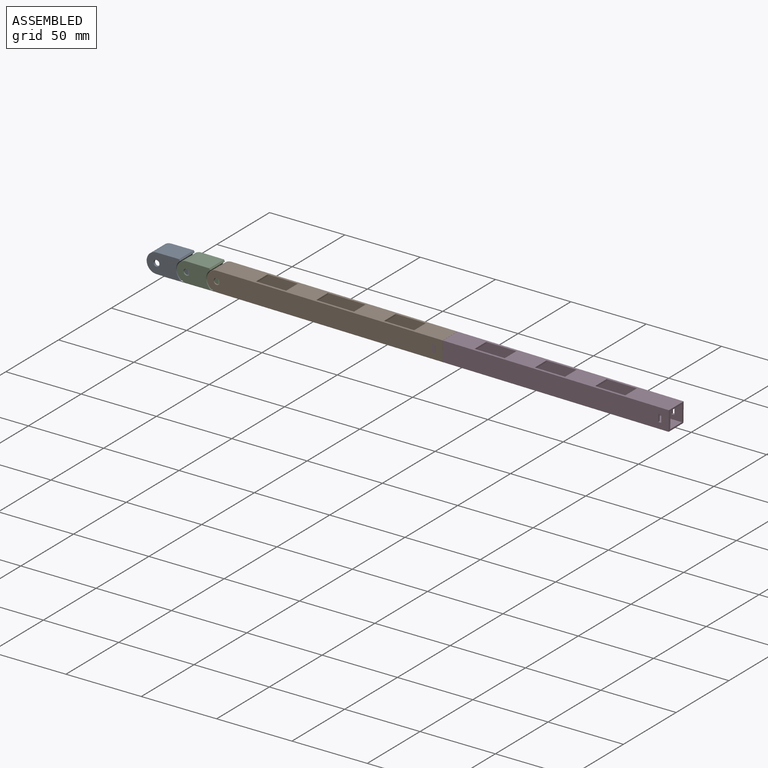
[diagram: assembled view]
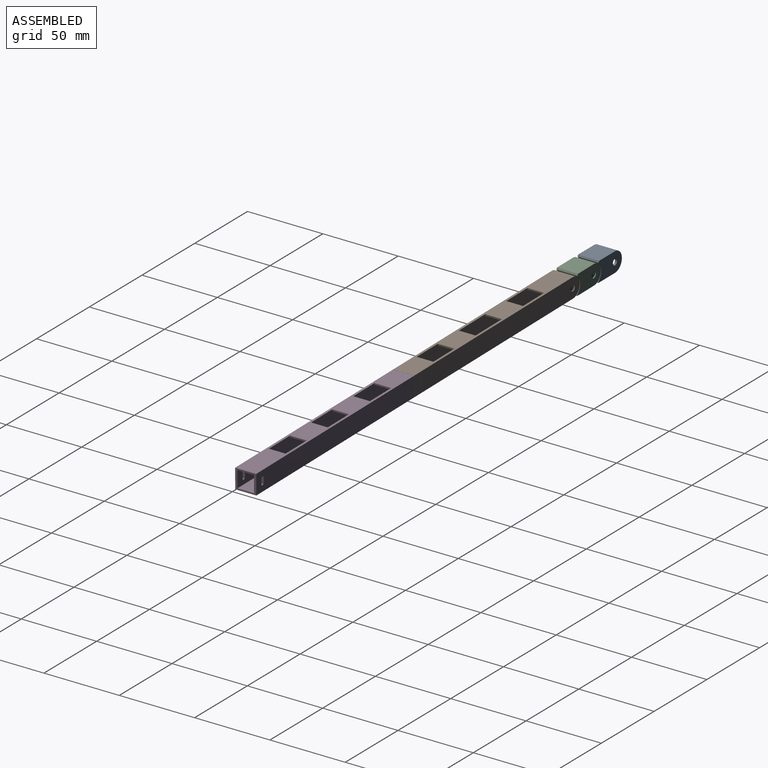
[diagram: assembled view, second angle]
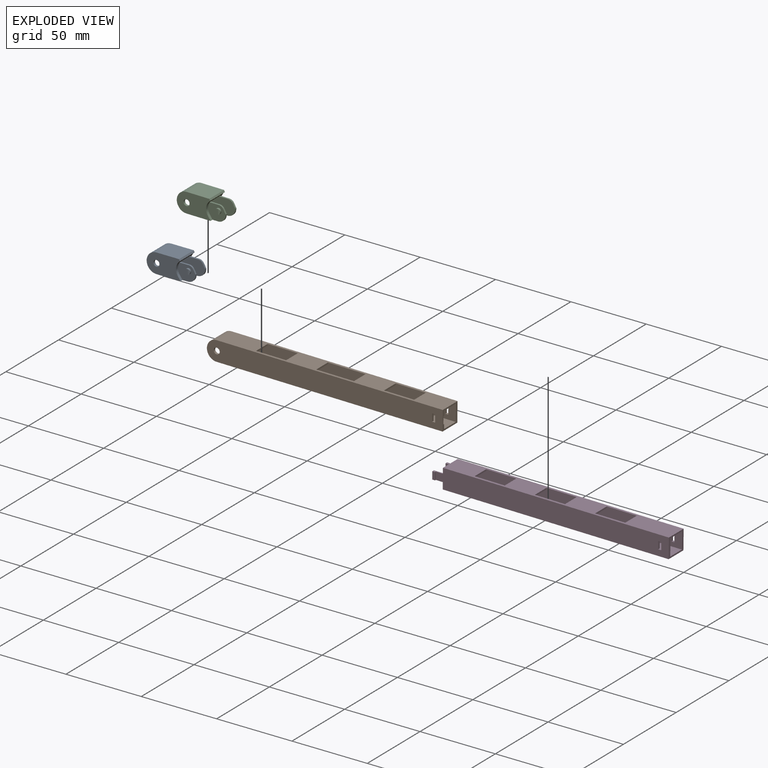
[diagram: exploded view]
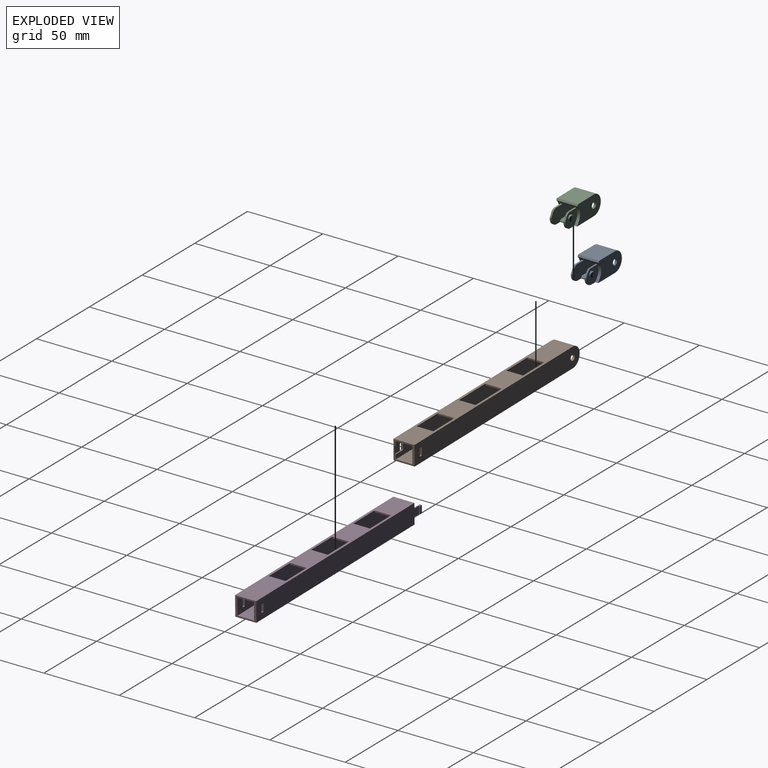
[diagram: exploded view, second angle]
ASSEMBLY  parts=4 mates=5
PART A: 40 faces, bbox 31.1x14x13 mm
  f0: plane 3.5x2.3mm, normal (0,-1,0), area 6.7mm2, adj f21,f25
  f1: cylinder r=7mm len=14mm, axis (0,1,0), area 64.4mm2, adj f2,f6,f8,f11,f18,f19,f20,f27
  f2: plane 14x1.05mm, normal (0.87,0,0.5), area 17mm2, adj f1,f3,f8,f29
  f3: plane 15x14mm, normal (0,0,1), area 210mm2, adj f2,f4,f8,f29
  f4: cylinder r=6.5mm len=14mm, axis (0,1,0), area 108.5mm2, adj f3,f5,f8,f9,f10,f29,f30
  f5: plane 19.6x14mm, normal (0,0,-1), area 188.3mm2, adj f4,f6,f8,f9,f13,f14,f19,f20
  f6: plane 2.49x1.9mm, normal (0.82,0,0.57), area 5.8mm2, adj f1,f5,f8,f20
  f7: cylinder r=2mm len=4mm, axis (0,1,0), area 18.8mm2, adj f8,f9
  f8: plane 22.5x13mm, normal (0,-1,0), area 236.5mm2, adj f1,f2,f3,f4,f5,f6,f7
  f9: plane 13.4x11.63mm, normal (0,1,0), area 105.7mm2, adj f4,f5,f7,f10,f11,f12,f13
  f10: cylinder r=0.8mm len=11mm, axis (0,-1,0), area 21.8mm2, adj f4,f9,f11,f30
  f11: plane 17.56x11mm, normal (0,0,-1), area 168.4mm2, adj f1,f9,f10,f12,f19,f30,f36
  f12: cylinder r=6.9mm len=11mm, axis (0,-1,0), area 38.7mm2, adj f9,f11,f13,f19,f22,f30,f36
  f13: cylinder r=0.5mm len=11mm, axis (0,-1,0), area 13.8mm2, adj f5,f9,f12,f30
  f14: cylinder r=5mm len=5mm, axis (0,-1,0), area 8.6mm2, adj f5,f15,f19,f20
  f15: plane 1.1x0.5mm, normal (1,0,0), area 0.6mm2, adj f14,f16,f19,f20
  f16: plane 2.73x1.56mm, normal (0.87,0,0.5), area 3.5mm2, adj f15,f17,f19,f20
  f17: cylinder r=3.5mm len=3.04mm, axis (0,-1,0), area 4.1mm2, adj f16,f18,f19,f20
  f18: plane 6.06x1.1mm, normal (0,0,1), area 6.7mm2, adj f1,f17,f19,f20
  f19: plane 19.85x10.2mm, normal (0,1,0), area 157.3mm2, adj f1,f5,f11,f12,f14,f15,f16,f17
  f20: plane 11.6x10mm, normal (0,-1,0), area 86.6mm2, adj f1,f5,f6,f14,f15,f16,f17,f18
  f21: cylinder r=1.75mm len=3.5mm, axis (0,1,0), area 14mm2, adj f0,f20,f25
  f22: plane 10.75x8mm, normal (0,0,1), area 86mm2, adj f12,f19,f23,f36
  f23: plane 8x1mm, normal (0.71,0,0.71), area 11.3mm2, adj f19,f22,f24,f36
  f24: plane 8x0.5mm, normal (1,0,0), area 4mm2, adj f5,f19,f23,f36
  f25: plane 3.32x1.2mm, normal (0.38,-0.92,0), area 3.2mm2, adj f0,f21
  f26: plane 3.5x2.3mm, normal (0,1,0), area 6.7mm2, adj f38,f39
  f27: plane 2.49x1.9mm, normal (0.82,0,0.57), area 5.8mm2, adj f1,f5,f29,f37
  f28: cylinder r=2mm len=4mm, axis (0,-1,0), area 18.8mm2, adj f29,f30
  f29: plane 22.5x13mm, normal (0,1,0), area 236.5mm2, adj f1,f2,f3,f4,f5,f27,f28
  f30: plane 13.4x11.63mm, normal (0,-1,0), area 105.7mm2, adj f4,f5,f10,f11,f12,f13,f28
  f31: cylinder r=5mm len=5mm, axis (0,1,0), area 8.6mm2, adj f5,f32,f36,f37
  f32: plane 1.1x0.5mm, normal (1,0,0), area 0.6mm2, adj f31,f33,f36,f37
  f33: plane 2.73x1.56mm, normal (0.87,0,0.5), area 3.5mm2, adj f32,f34,f36,f37
  f34: cylinder r=3.5mm len=3.04mm, axis (0,1,0), area 4.1mm2, adj f33,f35,f36,f37
  f35: plane 6.06x1.1mm, normal (0,0,1), area 6.7mm2, adj f1,f34,f36,f37
  f36: plane 19.85x10.2mm, normal (0,-1,0), area 157.3mm2, adj f1,f5,f11,f12,f22,f23,f24,f31
  f37: plane 11.6x10mm, normal (0,1,0), area 86.6mm2, adj f1,f5,f27,f31,f32,f33,f34,f35
  f38: cylinder r=1.75mm len=3.5mm, axis (0,-1,0), area 14mm2, adj f26,f37,f39
  f39: plane 3.32x1.2mm, normal (0.38,0.92,0), area 3.2mm2, adj f26,f38
PART B: 43 faces, bbox 156.5x14x13 mm
  f0: plane 5x0.75mm, normal (-1,0,0), area 3.7mm2, adj f3,f39,f40,f42
  f1: plane 156.5x13mm, normal (0,1,0), area 1781.7mm2, adj f2,f6,f7,f8,f9,f10,f11,f12
  f2: plane 14x13mm, normal (1,0,0), area 57.3mm2, adj f1,f3,f4,f5,f7,f8,f21,f29
  f3: plane 156.5x13mm, normal (0,-1,0), area 1993.8mm2, adj f0,f2,f6,f7,f8,f9,f39,f40
  f4: plane 156.5x13mm, normal (0,-1,0), area 1806.7mm2, adj f2,f6,f7,f8,f10,f11,f12,f13
  f5: plane 156.5x13mm, normal (0,1,0), area 1993.8mm2, adj f2,f6,f7,f8,f34,f35,f36,f37
  f6: cylinder r=6.5mm len=14mm, axis (0,1,0), area 108.5mm2, adj f1,f3,f4,f5,f7,f8,f10
  f7: plane 150x14mm, normal (0,0,-1), area 1337.4mm2, adj f1,f2,f3,f4,f5,f6,f23,f25
  f8: plane 150x14mm, normal (0,0,1), area 1385mm2, adj f1,f2,f3,f4,f5,f6,f11,f15
  f9: cylinder r=2mm len=4mm, axis (0,1,0), area 18.8mm2, adj f1,f3
  f10: cylinder r=0.8mm len=11mm, axis (0,-1,0), area 21.8mm2, adj f1,f4,f6,f14
  f11: plane 11x1mm, normal (1,0,0), area 11mm2, adj f1,f4,f8,f12
  f12: plane 17.1x11mm, normal (0,0,-1), area 188.1mm2, adj f1,f4,f11,f13
  f13: cylinder r=2.1mm len=11mm, axis (0,-1,0), area 33mm2, adj f1,f4,f12,f14
  f14: plane 11x9.32mm, normal (0,0,-1), area 102.5mm2, adj f1,f4,f10,f13
  f15: plane 11x1mm, normal (-1,0,0), area 11mm2, adj f1,f4,f8,f17
  f16: plane 11x1mm, normal (1,0,0), area 11mm2, adj f1,f4,f8,f17
  f17: plane 20x11mm, normal (0,0,-1), area 220mm2, adj f1,f4,f15,f16
  f18: plane 11x1mm, normal (1,0,0), area 11mm2, adj f1,f4,f8,f19
  f19: plane 20x11mm, normal (0,0,-1), area 220mm2, adj f1,f4,f18,f20
  f20: plane 11x1mm, normal (-1,0,0), area 11mm2, adj f1,f4,f8,f19
  f21: plane 20x11mm, normal (0,0,-1), area 220mm2, adj f1,f2,f4,f22
  f22: plane 11x1mm, normal (-1,0,0), area 11mm2, adj f1,f4,f8,f21
  f23: cylinder r=0.5mm len=11mm, axis (0,-1,0), area 13.8mm2, adj f1,f4,f7,f24
  f24: plane 20.96x11mm, normal (0,0,1), area 230.6mm2, adj f1,f4,f23,f25
  f25: plane 11x0.91mm, normal (1,0,0), area 10mm2, adj f1,f4,f7,f24
  f26: plane 11x1mm, normal (-1,0,0), area 11mm2, adj f1,f4,f7,f27
  f27: plane 20x11mm, normal (0,0,1), area 220mm2, adj f1,f4,f26,f28
  f28: plane 11x1mm, normal (1,0,0), area 11mm2, adj f1,f4,f7,f27
  f29: plane 20x11mm, normal (0,0,1), area 220mm2, adj f1,f2,f4,f30
  f30: plane 11x1mm, normal (-1,0,0), area 11mm2, adj f1,f4,f7,f29
  f31: plane 11x1mm, normal (1,0,0), area 11mm2, adj f1,f4,f7,f33
  f32: plane 11x1mm, normal (-1,0,0), area 11mm2, adj f1,f4,f7,f33
  f33: plane 20x11mm, normal (0,0,1), area 220mm2, adj f1,f4,f31,f32
  f34: cylinder r=2mm len=4mm, axis (0,-1,0), area 18.8mm2, adj f4,f5
  f35: plane 5x1.5mm, normal (1,0,0), area 7.5mm2, adj f4,f5,f36,f38
  f36: plane 2x1.5mm, normal (0,0,1), area 3mm2, adj f4,f5,f35,f37
  f37: plane 5x1.5mm, normal (-1,0,0), area 7.5mm2, adj f4,f5,f36,f38
  f38: plane 2x1.5mm, normal (0,0,-1), area 3mm2, adj f4,f5,f35,f37
  f39: plane 7x1.5mm, normal (0,0,-1), area 6.8mm2, adj f0,f1,f2,f3,f41,f42
  f40: plane 7x1.5mm, normal (0,0,1), area 6.8mm2, adj f0,f1,f2,f3,f41,f42
  f41: plane 5x1.5mm, normal (1,0,0), area 7.5mm2, adj f1,f3,f39,f40
  f42: plane 5x5mm, normal (0,1,0), area 25mm2, adj f0,f2,f39,f40
PART C: same geometry as A
PART D: 48 faces, bbox 157x14x13 mm
  f0: plane 150x13mm, normal (0,-1,0), area 1940mm2, adj f4,f5,f13,f16,f44,f45,f46,f47
  f1: plane 157x13mm, normal (0,1,0), area 1795mm2, adj f4,f5,f6,f7,f8,f9,f10,f11
  f2: plane 157x13mm, normal (0,-1,0), area 1795mm2, adj f4,f5,f6,f7,f8,f9,f10,f11
  f3: plane 150x13mm, normal (0,1,0), area 1940mm2, adj f4,f5,f13,f16,f40,f41,f42,f43
  f4: plane 150x14mm, normal (0,0,1), area 1440mm2, adj f0,f1,f2,f3,f13,f16,f34,f35
  f5: plane 150x14mm, normal (0,0,-1), area 1440mm2, adj f0,f1,f2,f3,f13,f16,f28,f29
  f6: plane 20x11mm, normal (0,0,-1), area 220mm2, adj f1,f2,f36,f39
  f7: plane 20x11mm, normal (0,0,-1), area 220mm2, adj f1,f2,f34,f37
  f8: plane 30x11mm, normal (0,0,-1), area 330mm2, adj f1,f2,f16,f35
  f9: plane 20x11mm, normal (0,0,1), area 220mm2, adj f1,f2,f31,f32
  f10: plane 20x11mm, normal (0,0,1), area 220mm2, adj f1,f2,f29,f30
  f11: plane 30x11mm, normal (0,0,1), area 330mm2, adj f1,f2,f16,f28
  f12: plane 5.2x5mm, normal (0,1,0), area 26mm2, adj f13,f21,f23,f24
  f13: plane 14x13mm, normal (-1,0,0), area 53.5mm2, adj f0,f1,f2,f3,f4,f5,f12,f14
  f14: plane 20x11mm, normal (0,0,-1), area 220mm2, adj f1,f2,f13,f38
  f15: plane 20x11mm, normal (0,0,1), area 220mm2, adj f1,f2,f13,f33
  f16: plane 14x13mm, normal (1,0,0), area 61mm2, adj f0,f1,f2,f3,f4,f5,f8,f11
  f17: plane 7x1.5mm, normal (0,0,1), area 6.6mm2, adj f1,f13,f19,f20,f26,f27
  f18: plane 7x1.5mm, normal (0,0,-1), area 6.6mm2, adj f1,f13,f19,f20,f26,f27
  f19: plane 5x1.5mm, normal (-1,0,0), area 7.5mm2, adj f1,f17,f18,f27
  f20: plane 5.2x5mm, normal (0,-1,0), area 26mm2, adj f13,f17,f18,f26
  f21: plane 7x1.5mm, normal (0,0,1), area 6.6mm2, adj f2,f12,f13,f22,f24,f25
  f22: plane 5x1.5mm, normal (-1,0,0), area 7.5mm2, adj f2,f21,f23,f25
  f23: plane 7x1.5mm, normal (0,0,-1), area 6.6mm2, adj f2,f12,f13,f22,f24,f25
  f24: plane 5x0.75mm, normal (1,0,0), area 3.8mm2, adj f12,f21,f23,f25
  f25: plane 5x1.8mm, normal (0,1,0), area 9mm2, adj f21,f22,f23,f24
  f26: plane 5x0.75mm, normal (1,0,0), area 3.8mm2, adj f17,f18,f20,f27
  f27: plane 5x1.8mm, normal (0,-1,0), area 9mm2, adj f17,f18,f19,f26
  f28: plane 11x1mm, normal (-1,0,0), area 11mm2, adj f1,f2,f5,f11
  f29: plane 11x1mm, normal (1,0,0), area 11mm2, adj f1,f2,f5,f10
  f30: plane 11x1mm, normal (-1,0,0), area 11mm2, adj f1,f2,f5,f10
  f31: plane 11x1mm, normal (1,0,0), area 11mm2, adj f1,f2,f5,f9
  f32: plane 11x1mm, normal (-1,0,0), area 11mm2, adj f1,f2,f5,f9
  f33: plane 11x1mm, normal (1,0,0), area 11mm2, adj f1,f2,f5,f15
  f34: plane 11x1mm, normal (1,0,0), area 11mm2, adj f1,f2,f4,f7
  f35: plane 11x1mm, normal (-1,0,0), area 11mm2, adj f1,f2,f4,f8
  f36: plane 11x1mm, normal (1,0,0), area 11mm2, adj f1,f2,f4,f6
  f37: plane 11x1mm, normal (-1,0,0), area 11mm2, adj f1,f2,f4,f7
  f38: plane 11x1mm, normal (1,0,0), area 11mm2, adj f1,f2,f4,f14
  f39: plane 11x1mm, normal (-1,0,0), area 11mm2, adj f1,f2,f4,f6
  f40: plane 5x1.5mm, normal (1,0,0), area 7.5mm2, adj f2,f3,f41,f43
  f41: plane 2x1.5mm, normal (0,0,1), area 3mm2, adj f2,f3,f40,f42
  f42: plane 5x1.5mm, normal (-1,0,0), area 7.5mm2, adj f2,f3,f41,f43
  f43: plane 2x1.5mm, normal (0,0,-1), area 3mm2, adj f2,f3,f40,f42
  f44: plane 2x1.5mm, normal (0,0,-1), area 3mm2, adj f0,f1,f45,f47
  f45: plane 5x1.5mm, normal (-1,0,0), area 7.5mm2, adj f0,f1,f44,f46
  f46: plane 2x1.5mm, normal (0,0,1), area 3mm2, adj f0,f1,f45,f47
  f47: plane 5x1.5mm, normal (1,0,0), area 7.5mm2, adj f0,f1,f44,f46
PLACE A t=(0,1.5,0)mm
PLACE B rot(axis=(0,1,0),0.7deg) t=(40,1.5,-0.23)mm
PLACE C rot(axis=(0,1,0),0.7deg) t=(20,1.5,0)mm
PLACE D rot(axis=(0,1,0),0.7deg) t=(340.08,1.5,-3.68)mm
MATE planar A.f8 <-> C.f8  axis (0,-1,0) through (4.68,0,-0.01)mm
MATE planar C.f29 <-> B.f5  axis (0,1,0) through (24.68,14,-0.06)mm
MATE cylindrical B.f34 <-> C.f21  axis (0,-1,0) through (40,12.5,-0.23)mm
MATE fastened D.f20 <-> B.f42  axis (0,-1,0) through (187.49,0.75,-1.93)mm
MATE cylindrical A.f17 <-> C.f7  axis (0,-1,0) through (20,1.9,0)mm
